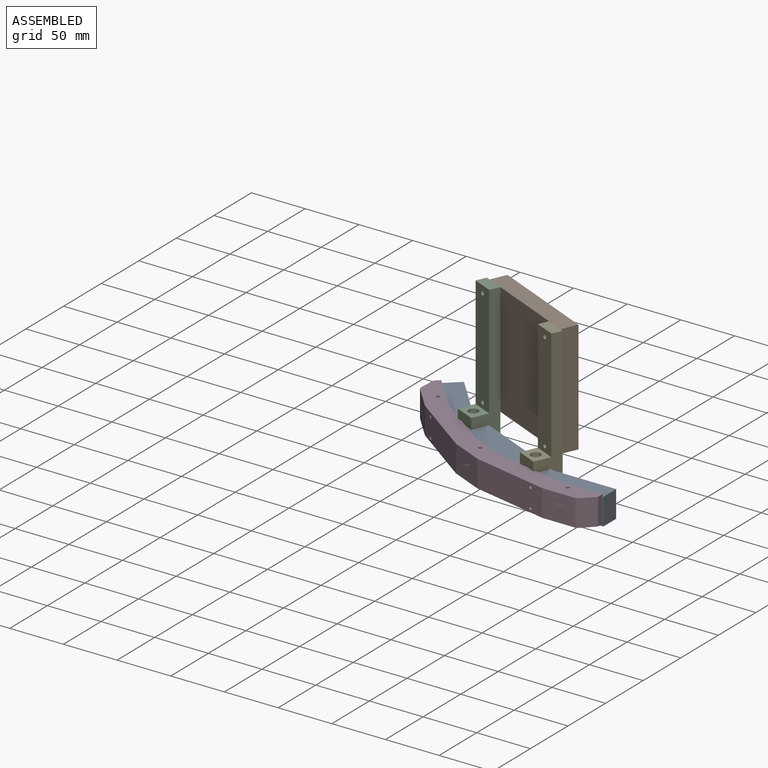
[diagram: assembled view]
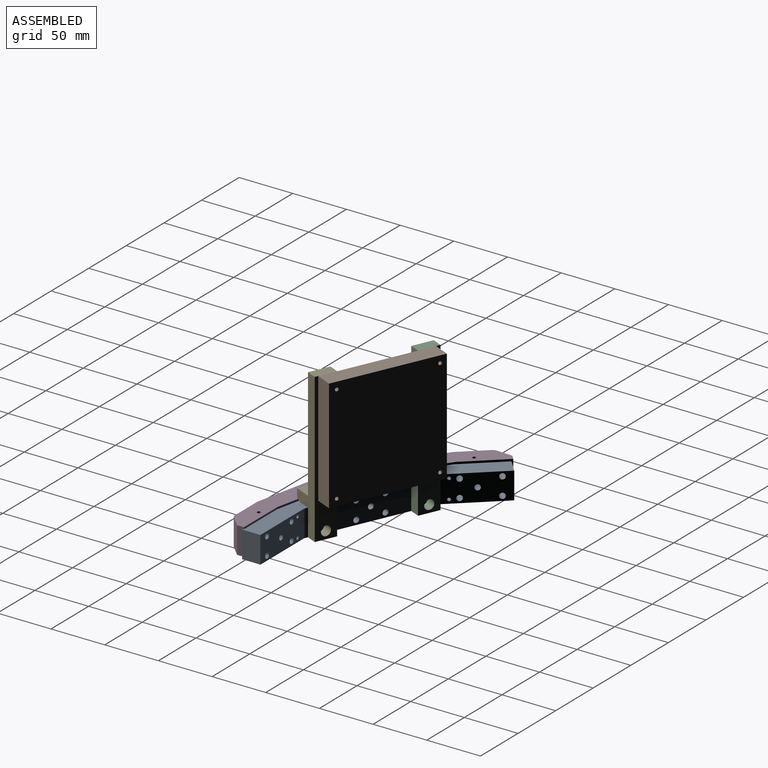
[diagram: assembled view, second angle]
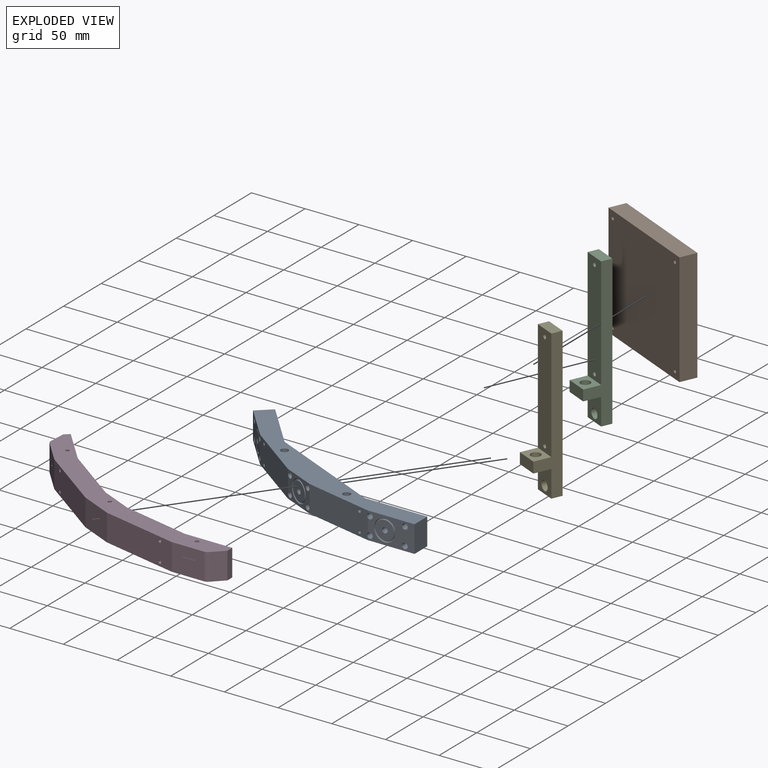
[diagram: exploded view]
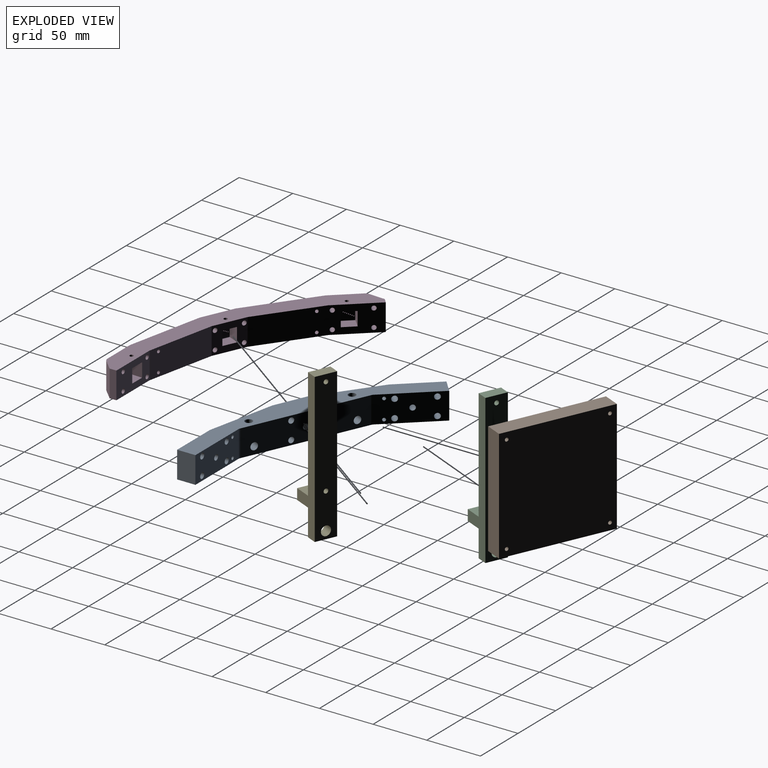
[diagram: exploded view, second angle]
ASSEMBLY  parts=5 mates=4
PART A: 65 faces, bbox 219x109.2x25.1 mm
  f0: plane 17.21x17.21mm, normal (0,-1,0), area 212.3mm2, adj f17,f53
  f1: plane 17.22x15.76mm, normal (-0.4,-0.92,0), area 212.3mm2, adj f19,f46
  f2: plane 17.19x12.77mm, normal (-0.74,-0.67,0), area 211.5mm2, adj f18,f41
  f3: cylinder r=5mm len=25mm, axis (0,0,-1), area 52.3mm2, adj f4,f14,f15,f16
  f4: plane 106.51x47.33mm, normal (0.41,0.91,0), area 2732.3mm2, adj f3,f5,f15,f16,f19,f32,f33,f34
  f5: cylinder r=5mm len=25mm, axis (0,0,-1), area 52.4mm2, adj f4,f6,f15,f16
  f6: plane 43.04x38.76mm, normal (0.74,0.67,0), area 1324.6mm2, adj f5,f7,f15,f16,f18,f22,f23,f28
  f7: plane 25x12.63mm, normal (-0.67,0.74,0), area 425mm2, adj f6,f8,f15,f16
  f8: plane 32.78x29.51mm, normal (-0.74,-0.67,0), area 689.3mm2, adj f7,f9,f15,f16,f28,f29,f30,f31
  f9: plane 52.72x38.31mm, normal (-0.59,-0.81,0), area 1612.8mm2, adj f8,f10,f15,f16,f22,f23,f30,f31
  f10: plane 29.29x25mm, normal (-0.4,-0.92,0), area 385.3mm2, adj f9,f11,f15,f16,f32,f33,f34,f35
  f11: plane 63.76x25.07mm, normal (-0.21,-0.98,0), area 1611.1mm2, adj f10,f12,f15,f16,f20,f21,f26,f27
  f12: plane 43.61x25mm, normal (0,-1,0), area 678.7mm2, adj f11,f13,f15,f16,f24,f25,f26,f27
  f13: plane 25x17mm, normal (1,0,0), area 425mm2, adj f12,f14,f15,f16
  f14: plane 57.35x25.14mm, normal (0,1,0), area 1307.1mm2, adj f3,f13,f15,f16,f17,f20,f21,f24
  f15: plane 218.83x109.03mm, normal (0,0,1), area 4285.5mm2, adj f3,f4,f5,f6,f7,f8,f9,f10
  f16: plane 218.83x109.03mm, normal (0,0,-1), area 4358.1mm2, adj f3,f4,f5,f6,f7,f8,f9,f10
  f17: cylinder r=2.55mm len=17mm, axis (0,1,0), area 272.7mm2, adj f0,f14
  f18: cylinder r=2.55mm len=16.05mm, axis (0.74,0.67,0), area 272.7mm2, adj f2,f6
  f19: cylinder r=2.55mm len=23.11mm, axis (0.41,0.91,0), area 369mm2, adj f1,f4
  f20: cylinder r=1.51mm len=15.99mm, axis (-0.21,-0.98,0), area 146mm2, adj f11,f14
  f21: cylinder r=1.51mm len=15.99mm, axis (-0.21,-0.98,0), area 146mm2, adj f11,f14
  f22: cylinder r=1.51mm len=14.49mm, axis (-0.59,-0.81,0), area 146.1mm2, adj f6,f9
  f23: cylinder r=1.51mm len=14.49mm, axis (-0.59,-0.81,0), area 146.1mm2, adj f6,f9
  f24: cylinder r=2.65mm len=17mm, axis (0,1,0), area 283.1mm2, adj f12,f14
  f25: cylinder r=2.65mm len=17mm, axis (0,1,0), area 283.1mm2, adj f12,f14
  f26: cylinder r=2.65mm len=17mm, axis (0,1,0), area 282.8mm2, adj f11,f12,f14
  f27: cylinder r=2.65mm len=17mm, axis (0,1,0), area 282.8mm2, adj f11,f12,f14
  f28: cylinder r=2.65mm len=16.18mm, axis (0.74,0.67,0), area 283.1mm2, adj f6,f8
  f29: cylinder r=2.65mm len=16.18mm, axis (0.74,0.67,0), area 283.1mm2, adj f6,f8
  f30: cylinder r=2.65mm len=16.18mm, axis (0.74,0.67,0), area 282.8mm2, adj f6,f8,f9
  f31: cylinder r=2.65mm len=16.18mm, axis (0.74,0.67,0), area 282.8mm2, adj f6,f8,f9
  f32: cylinder r=2.65mm len=23.15mm, axis (0.41,0.91,0), area 382.4mm2, adj f4,f10
  f33: cylinder r=2.65mm len=23.22mm, axis (0.41,0.91,0), area 383.8mm2, adj f4,f10
  f34: cylinder r=2.65mm len=23.22mm, axis (0.41,0.91,0), area 383.8mm2, adj f4,f10
  f35: cylinder r=2.65mm len=23.15mm, axis (0.41,0.91,0), area 382.4mm2, adj f4,f10
  f36: cone r=8.8mm half-angle=2deg, axis (-0.74,-0.67,0), area 48.9mm2, adj f41,f56
  f37: cone r=10mm half-angle=2deg, axis (0.74,0.67,0), area 55.8mm2, adj f39,f40
  f38: plane 19.68x14.62mm, normal (-0.74,-0.67,0), area 51.8mm2, adj f40,f56
  f39: torus R=10.21mm, axis (0.74,0.67,0), area 20.3mm2, adj f8,f37
  f40: torus R=9.84mm, axis (-0.74,-0.67,0), area 20.1mm2, adj f37,f38
  f41: torus R=8.59mm, axis (0.74,0.67,0), area 17.6mm2, adj f2,f36
  f42: cone r=10mm half-angle=2deg, axis (-0.4,-0.92,0), area 57.3mm2, adj f45,f47
  f43: cone r=8.8mm half-angle=2deg, axis (0.4,0.92,0), area 50.7mm2, adj f46,f55
  f44: plane 19.52x17.87mm, normal (-0.4,-0.92,0), area 42.7mm2, adj f47,f55
  f45: torus R=10.19mm, axis (0.4,0.92,0), area 19.4mm2, adj f10,f42
  f46: torus R=8.61mm, axis (0.4,0.92,0), area 16.9mm2, adj f1,f43
  f47: torus R=9.76mm, axis (-0.4,-0.92,0), area 19.1mm2, adj f42,f44
  f48: cone r=8.8mm half-angle=2deg, axis (0,1,0), area 50.7mm2, adj f53,f54
  f49: cone r=10mm half-angle=2deg, axis (0,-1,0), area 57.3mm2, adj f51,f52
  f50: plane 19.52x19.52mm, normal (0,-1,0), area 42.7mm2, adj f52,f54
  f51: torus R=10.19mm, axis (0,-1,0), area 19.4mm2, adj f12,f49
  f52: torus R=9.76mm, axis (0,-1,0), area 19.1mm2, adj f49,f50
  f53: torus R=8.61mm, axis (0,-1,0), area 16.9mm2, adj f0,f48
  f54: torus R=9.04mm, axis (0,-1,0), area 17.2mm2, adj f48,f50
  f55: torus R=9.04mm, axis (-0.4,-0.92,0), area 17.2mm2, adj f43,f44
  f56: torus R=8.96mm, axis (-0.74,-0.67,0), area 17.8mm2, adj f36,f38
  f57: cone r=0mm half-angle=59deg, axis (0.41,0.91,0), area 42.4mm2, adj f58
  f58: cylinder r=3.4mm len=11.9mm, axis (0.41,0.91,0), area 213.6mm2, adj f4,f57
  f59: cone r=0mm half-angle=59deg, axis (0.41,0.91,0), area 42.4mm2, adj f60
  f60: cylinder r=3.4mm len=11.9mm, axis (0.41,0.91,0), area 213.6mm2, adj f4,f59
  f61: cone r=0mm half-angle=59deg, axis (0,0,1), area 42.4mm2, adj f62
  f62: cylinder r=3.4mm len=10mm, axis (0,0,1), area 213.6mm2, adj f15,f61
  f63: cone r=0mm half-angle=59deg, axis (0,0,1), area 42.4mm2, adj f64
  f64: cylinder r=3.4mm len=10mm, axis (0,0,1), area 213.6mm2, adj f15,f63
PART B: 10 faces, bbox 105x16x105 mm
  f0: plane 105x16mm, normal (1,0,0), area 1680mm2, adj f1,f3,f4,f5
  f1: plane 105x16mm, normal (0,0,1), area 1680mm2, adj f0,f2,f4,f5
  f2: plane 105x16mm, normal (-1,0,0), area 1680mm2, adj f1,f3,f4,f5
  f3: plane 105x16mm, normal (0,0,-1), area 1680mm2, adj f0,f2,f4,f5
  f4: plane 105x105mm, normal (0,-1,0), area 10990.8mm2, adj f0,f1,f2,f3,f6,f7,f8,f9
  f5: plane 105x105mm, normal (0,1,0), area 10990.8mm2, adj f0,f1,f2,f3,f6,f7,f8,f9
  f6: cylinder r=1.65mm len=16mm, axis (0,-1,0), area 165.9mm2, adj f4,f5
  f7: cylinder r=1.65mm len=16mm, axis (0,-1,0), area 165.9mm2, adj f4,f5
  f8: cylinder r=1.65mm len=16mm, axis (0,-1,0), area 165.9mm2, adj f4,f5
  f9: cylinder r=1.65mm len=16mm, axis (0,-1,0), area 165.9mm2, adj f4,f5
PART C: 14 faces, bbox 26x20x139 mm
  f0: plane 20x16mm, normal (0,0,1), area 256.4mm2, adj f1,f7,f8,f9,f10
  f1: plane 20x10mm, normal (-1,0,0), area 200mm2, adj f0,f2,f8,f9
  f2: plane 20x16mm, normal (0,0,-1), area 256.4mm2, adj f1,f3,f8,f9,f10
  f3: plane 25x20mm, normal (-1,0,0), area 436.4mm2, adj f2,f4,f8,f9,f11
  f4: plane 20x10mm, normal (0,0,-1), area 200mm2, adj f3,f5,f8,f9
  f5: plane 139x20mm, normal (1,0,0), area 2688.7mm2, adj f4,f6,f8,f9,f11,f12,f13
  f6: plane 20x10mm, normal (0,0,1), area 200mm2, adj f5,f7,f8,f9
  f7: plane 104x20mm, normal (-1,0,0), area 2052.3mm2, adj f0,f6,f8,f9,f12,f13
  f8: plane 139x26mm, normal (0,-1,0), area 1550mm2, adj f0,f1,f2,f3,f4,f5,f6,f7
  f9: plane 139x26mm, normal (0,1,0), area 1550mm2, adj f0,f1,f2,f3,f4,f5,f6,f7
  f10: cylinder r=4.5mm len=10mm, axis (0,0,1), area 282.7mm2, adj f0,f2
  f11: cylinder r=4.5mm len=10mm, axis (1,0,0), area 282.7mm2, adj f3,f5
  f12: cylinder r=2.1mm len=10mm, axis (1,0,0), area 131.9mm2, adj f5,f7
  f13: cylinder r=2.1mm len=10mm, axis (1,0,0), area 131.9mm2, adj f5,f7
PART D: 146 faces, bbox 224x115.7x25 mm
  f0: plane 44.12x25.01mm, normal (0,1,0), area 878.4mm2, adj f1,f15,f16,f17,f60,f61,f62,f63
  f1: plane 63.25x25mm, normal (0.21,0.98,0), area 1602.7mm2, adj f0,f2,f16,f17,f142,f143
  f2: plane 29.25x25.01mm, normal (0.41,0.91,0), area 575.7mm2, adj f1,f3,f16,f17,f18,f19,f20,f21
  f3: plane 52.72x38.31mm, normal (0.59,0.81,0), area 1614.9mm2, adj f2,f4,f16,f17,f144,f145
  f4: plane 32.79x29.53mm, normal (0.74,0.67,0), area 878.4mm2, adj f3,f5,f16,f17,f23,f24,f25,f26
  f5: plane 25x4.38mm, normal (-0.67,0.74,0), area 147.3mm2, adj f4,f6,f16,f17
  f6: plane 25x15.03mm, normal (-1,0.05,0), area 376.3mm2, adj f5,f7,f16,f17
  f7: cylinder r=5mm len=25mm, axis (0,0,1), area 98.2mm2, adj f6,f8,f16,f17
  f8: plane 25x22.24mm, normal (-0.74,-0.67,0), area 744.2mm2, adj f7,f9,f16,f17,f28,f30,f32,f34
  f9: plane 58.78x42.71mm, normal (-0.59,-0.81,0), area 1802.1mm2, adj f8,f10,f16,f17,f144,f145
  f10: plane 29.23x25mm, normal (-0.41,-0.91,0), area 796mm2, adj f9,f11,f16,f17,f44,f46,f48,f50
  f11: plane 71.07x25mm, normal (-0.21,-0.98,0), area 1802.1mm2, adj f10,f12,f16,f17,f142,f143
  f12: plane 29.93x25mm, normal (0,-1,0), area 744.2mm2, adj f11,f13,f16,f17,f65,f67,f69,f71
  f13: cylinder r=5mm len=25mm, axis (0,0,1), area 98.2mm2, adj f12,f14,f16,f17
  f14: plane 25x10.15mm, normal (0.71,-0.71,0), area 358.7mm2, adj f13,f15,f16,f17
  f15: plane 25x6.39mm, normal (1,0,0), area 159.7mm2, adj f0,f14,f16,f17
  f16: plane 224x115.65mm, normal (0,0,-1), area 4436.4mm2, adj f0,f1,f2,f3,f4,f5,f6,f7
  f17: plane 224x115.65mm, normal (0,0,1), area 4408.3mm2, adj f0,f1,f2,f3,f4,f5,f6,f7
  f18: plane 12.4x9.08mm, normal (0.93,-0.36,0), area 115.7mm2, adj f2,f104,f110,f113
  f19: plane 14.84x13.74mm, normal (0.02,0.05,-1), area 106.3mm2, adj f2,f82,f107,f111,f113
  f20: plane 12.4x8.67mm, normal (-0.89,0.45,0), area 115.7mm2, adj f2,f102,f106,f107
  f21: plane 14.82x13.71mm, normal (0.02,0.05,1), area 115.7mm2, adj f2,f102,f104,f105
  f22: plane 11.38x10.4mm, normal (0.41,0.91,0), area 124.8mm2, adj f45,f47,f49,f51,f53,f55,f57,f59
  f23: plane 12.4x6.88mm, normal (0.71,-0.71,0), area 115.7mm2, adj f4,f116,f122,f125
  f24: plane 15.35x15.19mm, normal (0.04,0.04,-1), area 106.3mm2, adj f4,f81,f119,f123,f125
  f25: plane 12.4x7.56mm, normal (-0.63,0.78,0), area 115.7mm2, adj f4,f114,f118,f119
  f26: plane 15.34x15.18mm, normal (0.04,0.04,1), area 115.7mm2, adj f4,f114,f116,f117
  f27: plane 11.38x8.46mm, normal (0.74,0.67,0), area 124.8mm2, adj f29,f31,f33,f35,f37,f39,f41,f43
  f28: cylinder r=0.4mm len=6.44mm, axis (0.74,0.67,0), area 20mm2, adj f8,f29
  f29: cone r=0.4mm half-angle=30deg, axis (0.74,0.67,0), area 0.2mm2, adj f27,f28
  f30: cylinder r=0.4mm len=6.44mm, axis (0.74,0.67,0), area 20mm2, adj f8,f31
  f31: cone r=0.4mm half-angle=30deg, axis (0.74,0.67,0), area 0.2mm2, adj f27,f30
  f32: cylinder r=0.4mm len=6.44mm, axis (0.74,0.67,0), area 20mm2, adj f8,f33
  f33: cone r=0.4mm half-angle=30deg, axis (0.74,0.67,0), area 0.2mm2, adj f27,f32
  f34: cylinder r=0.4mm len=6.44mm, axis (0.74,0.67,0), area 20mm2, adj f8,f35
  f35: cone r=0.4mm half-angle=30deg, axis (0.74,0.67,0), area 0.2mm2, adj f27,f34
  f36: cylinder r=0.4mm len=6.44mm, axis (0.74,0.67,0), area 20mm2, adj f8,f37
  f37: cone r=0.4mm half-angle=30deg, axis (0.74,0.67,0), area 0.2mm2, adj f27,f36
  f38: cylinder r=0.4mm len=6.44mm, axis (0.74,0.67,0), area 20mm2, adj f8,f39
  f39: cone r=0.4mm half-angle=30deg, axis (0.74,0.67,0), area 0.2mm2, adj f27,f38
  f40: cylinder r=0.4mm len=6.44mm, axis (0.74,0.67,0), area 20mm2, adj f8,f41
  f41: cone r=0.4mm half-angle=30deg, axis (0.74,0.67,0), area 0.2mm2, adj f27,f40
  f42: cylinder r=0.4mm len=6.44mm, axis (0.74,0.67,0), area 20mm2, adj f8,f43
  f43: cone r=0.4mm half-angle=30deg, axis (0.74,0.67,0), area 0.2mm2, adj f27,f42
  f44: cylinder r=0.4mm len=7.58mm, axis (0.41,0.91,0), area 20mm2, adj f10,f45
  f45: cone r=0.4mm half-angle=30deg, axis (0.41,0.91,0), area 0.2mm2, adj f22,f44
  f46: cylinder r=0.4mm len=7.58mm, axis (0.41,0.91,0), area 20mm2, adj f10,f47
  f47: cone r=0.4mm half-angle=30deg, axis (0.41,0.91,0), area 0.2mm2, adj f22,f46
  f48: cylinder r=0.4mm len=7.58mm, axis (0.41,0.91,0), area 20mm2, adj f10,f49
  f49: cone r=0.4mm half-angle=30deg, axis (0.41,0.91,0), area 0.2mm2, adj f22,f48
  f50: cylinder r=0.4mm len=7.58mm, axis (0.41,0.91,0), area 20mm2, adj f10,f51
  f51: cone r=0.4mm half-angle=30deg, axis (0.41,0.91,0), area 0.2mm2, adj f22,f50
  f52: cylinder r=0.4mm len=7.58mm, axis (0.41,0.91,0), area 20mm2, adj f10,f53
  f53: cone r=0.4mm half-angle=30deg, axis (0.41,0.91,0), area 0.2mm2, adj f22,f52
  f54: cylinder r=0.4mm len=7.58mm, axis (0.41,0.91,0), area 20mm2, adj f10,f55
  f55: cone r=0.4mm half-angle=30deg, axis (0.41,0.91,0), area 0.2mm2, adj f22,f54
  f56: cylinder r=0.4mm len=7.58mm, axis (0.41,0.91,0), area 20mm2, adj f10,f57
  f57: cone r=0.4mm half-angle=30deg, axis (0.41,0.91,0), area 0.2mm2, adj f22,f56
  f58: cylinder r=0.4mm len=7.58mm, axis (0.41,0.91,0), area 20mm2, adj f10,f59
  f59: cone r=0.4mm half-angle=30deg, axis (0.41,0.91,0), area 0.2mm2, adj f22,f58
  f60: plane 12.7x9.72mm, normal (1,0.05,0), area 118.6mm2, adj f0,f63,f98,f101
  f61: plane 12.44x9.75mm, normal (0,0.05,-1), area 106.3mm2, adj f0,f83,f95,f99,f101
  f62: plane 12.4x9.72mm, normal (-1,0.05,0), area 115.7mm2, adj f0,f92,f94,f95
  f63: plane 12.7x9.72mm, normal (0,0.05,1), area 118.6mm2, adj f0,f60,f92,f96
  f64: plane 11.38x11.38mm, normal (0,1,0), area 124.8mm2, adj f66,f68,f70,f72,f74,f76,f78,f80
  f65: cylinder r=0.4mm len=7.94mm, axis (0,1,0), area 20mm2, adj f12,f66
  f66: cone r=0.4mm half-angle=30deg, axis (0,1,0), area 0.2mm2, adj f64,f65
  f67: cylinder r=0.4mm len=7.94mm, axis (0,1,0), area 20mm2, adj f12,f68
  f68: cone r=0.4mm half-angle=30deg, axis (0,1,0), area 0.2mm2, adj f64,f67
  f69: cylinder r=0.4mm len=7.94mm, axis (0,1,0), area 20mm2, adj f12,f70
  f70: cone r=0.4mm half-angle=30deg, axis (0,1,0), area 0.2mm2, adj f64,f69
  f71: cylinder r=0.4mm len=7.94mm, axis (0,1,0), area 20mm2, adj f12,f72
  f72: cone r=0.4mm half-angle=30deg, axis (0,1,0), area 0.2mm2, adj f64,f71
  f73: cylinder r=0.4mm len=7.94mm, axis (0,1,0), area 20mm2, adj f12,f74
  f74: cone r=0.4mm half-angle=30deg, axis (0,1,0), area 0.2mm2, adj f64,f73
  f75: cylinder r=0.4mm len=7.94mm, axis (0,1,0), area 20mm2, adj f12,f76
  f76: cone r=0.4mm half-angle=30deg, axis (0,1,0), area 0.2mm2, adj f64,f75
  f77: cylinder r=0.4mm len=7.94mm, axis (0,1,0), area 20mm2, adj f12,f78
  f78: cone r=0.4mm half-angle=30deg, axis (0,1,0), area 0.2mm2, adj f64,f77
  f79: cylinder r=0.4mm len=7.94mm, axis (0,1,0), area 20mm2, adj f12,f80
  f80: cone r=0.4mm half-angle=30deg, axis (0,1,0), area 0.2mm2, adj f64,f79
  f81: cylinder r=1.73mm len=6.41mm, axis (0,0,1), area 68.5mm2, adj f17,f24
  f82: cylinder r=1.73mm len=6.41mm, axis (0,0,1), area 68.5mm2, adj f17,f19
  f83: cylinder r=1.73mm len=6.41mm, axis (0,0,1), area 68.6mm2, adj f17,f61
  f84: cylinder r=2.1mm len=10mm, axis (0,1,0), area 131.9mm2, adj f0,f85
  f85: cone r=0mm half-angle=59deg, axis (0,1,0), area 16.2mm2, adj f84
  f86: cylinder r=2.1mm len=10mm, axis (0,1,0), area 131.9mm2, adj f0,f87
  f87: cone r=0mm half-angle=59deg, axis (0,1,0), area 16.2mm2, adj f86
  f88: cylinder r=2.1mm len=10mm, axis (0,1,0), area 131.9mm2, adj f0,f89
  f89: cone r=0mm half-angle=59deg, axis (0,1,0), area 16.2mm2, adj f88
  f90: cylinder r=2.1mm len=10mm, axis (0,1,0), area 131.9mm2, adj f0,f91
  f91: cone r=0mm half-angle=59deg, axis (0,1,0), area 16.2mm2, adj f90
  f92: cylinder r=0.3mm len=9.72mm, axis (-0.05,-1,0.05), area 4.6mm2, adj f0,f62,f63,f93
  f93: sphere r=0.3mm, area 0.1mm2, adj f92,f94,f96
  f94: cylinder r=0.3mm len=11.38mm, axis (0,0,1), area 5.2mm2, adj f62,f64,f93,f97
  f95: cylinder r=0.3mm len=9.72mm, axis (-0.05,-1,-0.05), area 4.6mm2, adj f0,f61,f62,f97
  f96: cylinder r=0.3mm len=11.68mm, axis (1,0,0), area 5.3mm2, adj f63,f64,f93,f98
  f97: sphere r=0.3mm, area 0.1mm2, adj f94,f95,f99
  f98: cylinder r=0.3mm len=11.68mm, axis (0,0,1), area 5.3mm2, adj f60,f64,f96,f100
  f99: cylinder r=0.3mm len=11.38mm, axis (1,0,0), area 5.2mm2, adj f61,f64,f97,f100
  f100: sphere r=0.3mm, area 0.1mm2, adj f98,f99,f101
  f101: cylinder r=0.3mm len=9.72mm, axis (0.05,-1,-0.05), area 4.6mm2, adj f0,f60,f61,f100
  f102: cylinder r=0.3mm len=8.79mm, axis (-0.45,-0.89,0.05), area 4.6mm2, adj f2,f20,f21,f103
  f103: sphere r=0.3mm, area 0.1mm2, adj f102,f105,f106
  f104: cylinder r=0.3mm len=9.2mm, axis (-0.36,-0.93,0.05), area 4.6mm2, adj f2,f18,f21,f108
  f105: cylinder r=0.3mm len=10.51mm, axis (0.91,-0.41,0), area 5.2mm2, adj f21,f22,f103,f108
  f106: cylinder r=0.3mm len=11.38mm, axis (0,0,1), area 5.2mm2, adj f20,f22,f103,f109
  f107: cylinder r=0.3mm len=8.79mm, axis (-0.45,-0.89,-0.05), area 4.6mm2, adj f2,f19,f20,f109
  f108: sphere r=0.3mm, area 0.1mm2, adj f104,f105,f110
  f109: sphere r=0.3mm, area 0.1mm2, adj f106,f107,f111
  f110: cylinder r=0.3mm len=11.38mm, axis (0,0,1), area 5.2mm2, adj f18,f22,f108,f112
  f111: cylinder r=0.3mm len=10.51mm, axis (0.91,-0.41,0), area 5.2mm2, adj f19,f22,f109,f112
  f112: sphere r=0.3mm, area 0.1mm2, adj f110,f111,f113
  f113: cylinder r=0.3mm len=9.2mm, axis (-0.36,-0.93,-0.05), area 4.6mm2, adj f2,f18,f19,f112
  f114: cylinder r=0.3mm len=7.76mm, axis (-0.78,-0.63,0.05), area 4.6mm2, adj f4,f25,f26,f115
  f115: sphere r=0.3mm, area 0.1mm2, adj f114,f117,f118
  f116: cylinder r=0.3mm len=7.1mm, axis (-0.71,-0.71,0.05), area 4.6mm2, adj f4,f23,f26,f120
  f117: cylinder r=0.3mm len=8.65mm, axis (0.67,-0.74,0), area 5.2mm2, adj f26,f27,f115,f120
  f118: cylinder r=0.3mm len=11.38mm, axis (0,0,1), area 5.2mm2, adj f25,f27,f115,f121
  f119: cylinder r=0.3mm len=7.76mm, axis (-0.78,-0.63,-0.05), area 4.6mm2, adj f4,f24,f25,f121
  f120: sphere r=0.3mm, area 0.1mm2, adj f116,f117,f122
  f121: sphere r=0.3mm, area 0.1mm2, adj f118,f119,f123
  f122: cylinder r=0.3mm len=11.38mm, axis (0,0,1), area 5.2mm2, adj f23,f27,f120,f124
  f123: cylinder r=0.3mm len=8.65mm, axis (0.67,-0.74,0), area 5.2mm2, adj f24,f27,f121,f124
  f124: sphere r=0.3mm, area 0.1mm2, adj f122,f123,f125
  f125: cylinder r=0.3mm len=7.1mm, axis (-0.71,-0.71,-0.05), area 4.6mm2, adj f4,f23,f24,f124
  f126: cylinder r=2.1mm len=10.84mm, axis (0.41,0.91,0), area 131.9mm2, adj f2,f127
  f127: cone r=0mm half-angle=59deg, axis (0.41,0.91,0), area 16.2mm2, adj f126
  f128: cylinder r=2.1mm len=10.84mm, axis (0.41,0.91,0), area 131.9mm2, adj f2,f129
  f129: cone r=0mm half-angle=59deg, axis (0.41,0.91,0), area 16.2mm2, adj f128
  f130: cylinder r=2.1mm len=10.84mm, axis (0.41,0.91,0), area 131.9mm2, adj f2,f131
  f131: cone r=0mm half-angle=59deg, axis (0.41,0.91,0), area 16.2mm2, adj f130
  f132: cylinder r=2.1mm len=10.84mm, axis (0.41,0.91,0), area 131.9mm2, adj f2,f133
  f133: cone r=0mm half-angle=59deg, axis (0.41,0.91,0), area 16.2mm2, adj f132
  f134: cylinder r=2.1mm len=10.24mm, axis (0.74,0.67,0), area 131.9mm2, adj f4,f135
  f135: cone r=0mm half-angle=59deg, axis (0.74,0.67,0), area 16.2mm2, adj f134
  f136: cylinder r=2.1mm len=10.24mm, axis (0.74,0.67,0), area 131.9mm2, adj f4,f137
  f137: cone r=0mm half-angle=59deg, axis (0.74,0.67,0), area 16.2mm2, adj f136
  f138: cylinder r=2.1mm len=10.24mm, axis (0.74,0.67,0), area 131.9mm2, adj f4,f139
  f139: cone r=0mm half-angle=59deg, axis (0.74,0.67,0), area 16.2mm2, adj f138
  f140: cylinder r=2.1mm len=10.24mm, axis (0.74,0.67,0), area 131.9mm2, adj f4,f141
  f141: cone r=0mm half-angle=59deg, axis (0.74,0.67,0), area 16.2mm2, adj f140
  f142: cylinder r=1.51mm len=17.76mm, axis (0.21,0.98,0), area 166.2mm2, adj f1,f11
  f143: cylinder r=1.51mm len=17.76mm, axis (0.21,0.98,0), area 166.2mm2, adj f1,f11
  f144: cylinder r=1.51mm len=16.02mm, axis (0.59,0.81,0), area 167mm2, adj f3,f9
  f145: cylinder r=1.51mm len=16.02mm, axis (0.59,0.81,0), area 167mm2, adj f3,f9
PART E: same geometry as C
PLACE A t=(-56.6,134.74,23.4)mm
PLACE B rot(axis=(0,0,-1),24deg) t=(-130.56,-32.56,109.9)mm
PLACE C rot(axis=(0,0,1),66deg) t=(-192.65,-33.42,58.4)mm
PLACE D t=(-57.76,135.59,50.19)mm
PLACE E rot(axis=(0,0,1),66deg) t=(-108.58,-70.78,58.4)mm
MATE planar E.f11 <-> A.f59  axis (-0.41,-0.91,0) through (-99.44,-74.84,30.4)mm
MATE planar C.f11 <-> A.f57  axis (-0.41,-0.91,0) through (-183.52,-37.48,30.4)mm
MATE planar A.f9 <-> D.f3  axis (-0.59,-0.81,0) through (-191.73,-51.69,35.9)mm
MATE planar B.f7 <-> E.f12  axis (-0.41,-0.91,0) through (-95.38,-65.71,155.9)mm
